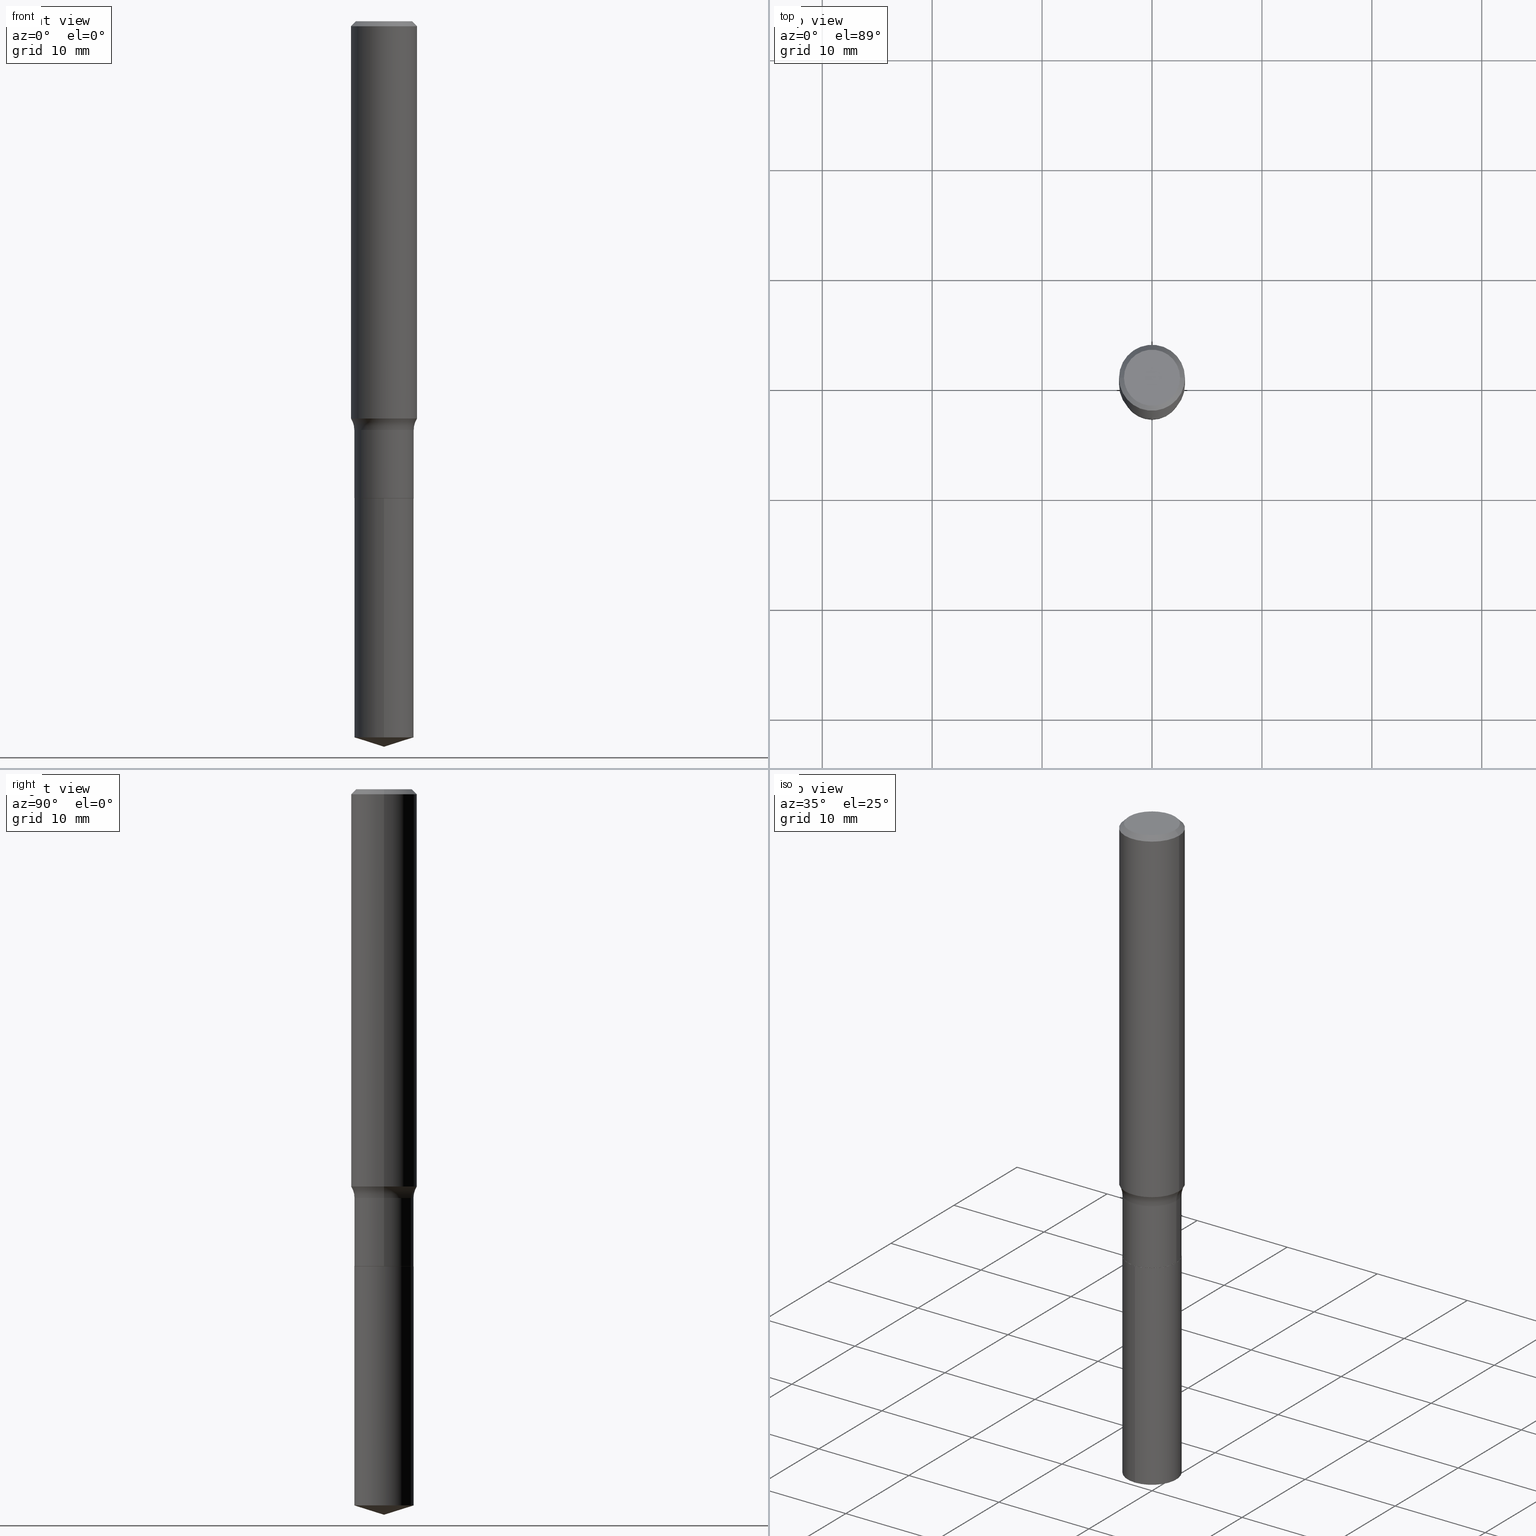
[diagram: canonical four-view strip — front | top / right | iso, engineering-drawing reading convention]
A machine part, canonical four-view strip (front | top / right | iso — engineering-drawing reading convention). The complete STEP part file that produces these views, byte-faithful:
ISO-10303-21;
HEADER;
FILE_DESCRIPTION (( 'STEP AP203' ),
    '1' );
FILE_NAME ('63750.STEP',
    '2024-04-19T15:07:24',
    ( '' ),
    ( '' ),
    'SwSTEP 2.0',
    'SolidWorks 2023',
    '' );
FILE_SCHEMA (( 'CONFIG_CONTROL_DESIGN' ));
ENDSEC;

DATA;
#1 = ORIENTED_EDGE ( 'NONE', *, *, #270, .F. ) ;
#2 = DIRECTION ( 'NONE',  ( -6.982962677686265133E-15, -1.000000000000000000, 3.500519750498657495E-15 ) ) ;
#3 = ORIENTED_EDGE ( 'NONE', *, *, #384, .T. ) ;
#4 = FACE_OUTER_BOUND ( 'NONE', #464, .T. ) ;
#5 = TOROIDAL_SURFACE ( 'NONE', #123, 0.1842999999999999639, 0.07799999999999999989 ) ;
#6 = ORIENTED_EDGE ( 'NONE', *, *, #27, .T. ) ;
#7 = AXIS2_PLACEMENT_3D ( 'NONE', #458, #115, #235 ) ;
#8 = PLANE ( 'NONE',  #158 ) ;
#9 = VERTEX_POINT ( 'NONE', #98 ) ;
#10 = CARTESIAN_POINT ( 'NONE',  ( 4.178328002247923804E-29, -5.965545015547398653E-15, -1.708599999999999897 ) ) ;
#11 = VERTEX_POINT ( 'NONE', #94 ) ;
#12 = ORIENTED_EDGE ( 'NONE', *, *, #418, .T. ) ;
#13 = CC_DESIGN_PERSON_AND_ORGANIZATION_ASSIGNMENT ( #447, #294, ( #60 ) ) ;
#14 = AXIS2_PLACEMENT_3D ( 'NONE', #85, #42, #237 ) ;
#15 = ORIENTED_EDGE ( 'NONE', *, *, #49, .T. ) ;
#16 = DESIGN_CONTEXT ( 'detailed design', #337, 'design' ) ;
#17 = DIRECTION ( 'NONE',  ( 1.000000000000000000, -6.982962677686269077E-15, 0.000000000000000000 ) ) ;
#18 = DIRECTION ( 'NONE',  ( -1.000000000000000000, 7.105427357600997914E-15, 0.000000000000000000 ) ) ;
#19 =( CONVERSION_BASED_UNIT ( 'INCH', #128 ) LENGTH_UNIT ( ) NAMED_UNIT ( #322 ) );
#20 = CC_DESIGN_PERSON_AND_ORGANIZATION_ASSIGNMENT ( #69, #411, ( #124 ) ) ;
#21 = ORIENTED_EDGE ( 'NONE', *, *, #211, .F. ) ;
#22 = AXIS2_PLACEMENT_3D ( 'NONE', #291, #368, #363 ) ;
#23 = CC_DESIGN_APPROVAL ( #180, ( #463 ) ) ;
#24 = CARTESIAN_POINT ( 'NONE',  ( -0.1842999999999999639, -3.802347566194384707E-15, -1.464099999999999735 ) ) ;
#25 = DIRECTION ( 'NONE',  ( 1.000000000000000000, -6.982962677686266711E-15, 4.876140833081945105E-29 ) ) ;
#26 = DIRECTION ( 'NONE',  ( 0.7071067811866199593, -2.468850131083015945E-15, 0.7071067811864750752 ) ) ;
#27 = EDGE_CURVE ( 'NONE', #479, #310, #397, .T. ) ;
#28 = VECTOR ( 'NONE', #51, 39.37007874015748143 ) ;
#29 = AXIS2_PLACEMENT_3D ( 'NONE', #357, #402, #57 ) ;
#30 = DIRECTION ( 'NONE',  ( -2.445468806185136597E-29, 3.491481338843145583E-15, 1.000000000000000000 ) ) ;
#31 = DATE_AND_TIME ( #61, #201 ) ;
#32 = DIRECTION ( 'NONE',  ( -2.445468806185136597E-29, 3.491481338843145583E-15, 1.000000000000000000 ) ) ;
#33 = CC_DESIGN_PERSON_AND_ORGANIZATION_ASSIGNMENT ( #338, #373, ( #60 ) ) ;
#34 = CARTESIAN_POINT ( 'NONE',  ( 7.553069281130493504E-16, 0.1062999999999910683, -2.564883738742165242 ) ) ;
#35 = CARTESIAN_POINT ( 'NONE',  ( 4.178328002247923804E-29, -5.965545015547398653E-15, -1.708599999999999897 ) ) ;
#36 = CC_DESIGN_SECURITY_CLASSIFICATION ( #124, ( #60 ) ) ;
#37 = ORIENTED_EDGE ( 'NONE', *, *, #491, .T. ) ;
#38 = FACE_OUTER_BOUND ( 'NONE', #316, .T. ) ;
#39 = ORIENTED_EDGE ( 'NONE', *, *, #217, .F. ) ;
#40 = CARTESIAN_POINT ( 'NONE',  ( 4.178328002247923804E-29, -5.965545015547398653E-15, -1.708599999999999897 ) ) ;
#41 = ORIENTED_EDGE ( 'NONE', *, *, #297, .T. ) ;
#42 = DIRECTION ( 'NONE',  ( 2.445468806185136597E-29, -3.491481338843145583E-15, -1.000000000000000000 ) ) ;
#43 = CONICAL_SURFACE ( 'NONE', #109, 0.1058000000000000052, 0.7853981633975507526 ) ;
#44 = EDGE_LOOP ( 'NONE', ( #315, #1 ) ) ;
#45 = FACE_OUTER_BOUND ( 'NONE', #478, .T. ) ;
#46 = EDGE_CURVE ( 'NONE', #383, #310, #413, .T. ) ;
#47 = ORIENTED_EDGE ( 'NONE', *, *, #129, .F. ) ;
#48 = DIRECTION ( 'NONE',  ( -2.445468806185136597E-29, 3.491481338843145583E-15, 1.000000000000000000 ) ) ;
#49 = EDGE_CURVE ( 'NONE', #11, #437, #108, .T. ) ;
#50 = DIRECTION ( 'NONE',  ( 1.000000000000000000, -6.982962677686266711E-15, 0.000000000000000000 ) ) ;
#51 = DIRECTION ( 'NONE',  ( 0.7071067811865454633, -7.319954787623248157E-15, -0.7071067811865495711 ) ) ;
#52 = CIRCLE ( 'NONE', #421, 0.1181000000000001632 ) ;
#53 = APPLICATION_PROTOCOL_DEFINITION ( 'international standard', 'config_control_design', 1994, #253 ) ;
#54 = DIRECTION ( 'NONE',  ( -6.982962677686265922E-15, -1.000000000000000000, 2.569941668545873170E-15 ) ) ;
#55 = EDGE_CURVE ( 'NONE', #113, #479, #327, .T. ) ;
#56 = ORIENTED_EDGE ( 'NONE', *, *, #49, .F. ) ;
#57 = DIRECTION ( 'NONE',  ( 1.000000000000000000, -6.982962677686265922E-15, 4.876176775795935793E-29 ) ) ;
#58 = ORIENTED_EDGE ( 'NONE', *, *, #297, .F. ) ;
#59 = CIRCLE ( 'NONE', #190, 0.1063000000000000056 ) ;
#60 = PRODUCT_DEFINITION_FORMATION_WITH_SPECIFIED_SOURCE ( 'ANY', '', #473, .NOT_KNOWN. ) ;
#61 = CALENDAR_DATE ( 2024, 19, 4 ) ;
#62 = CARTESIAN_POINT ( 'NONE',  ( 3.580410879135657668E-29, -5.111877828200249487E-15, -1.464099999999999735 ) ) ;
#63 = LINE ( 'NONE', #372, #468 ) ;
#64 = EDGE_CURVE ( 'NONE', #155, #117, #399, .T. ) ;
#65 = CALENDAR_DATE ( 2024, 19, 4 ) ;
#66 = DIRECTION ( 'NONE',  ( -2.445655666621594660E-29, 3.491213744062702196E-15, 1.000000000000000000 ) ) ;
#67 = ADVANCED_FACE ( 'NONE', ( #248 ), #459, .T. ) ;
#68 = AXIS2_PLACEMENT_3D ( 'NONE', #369, #302, #331 ) ;
#69 = PERSON_AND_ORGANIZATION ( #405, #239 ) ;
#70 = AXIS2_PLACEMENT_3D ( 'NONE', #272, #312, #462 ) ;
#71 = DIRECTION ( 'NONE',  ( -2.445468806185136597E-29, 3.491481338843145583E-15, 1.000000000000000000 ) ) ;
#72 = UNCERTAINTY_MEASURE_WITH_UNIT (LENGTH_MEASURE( 1.000000000000000082E-05 ), #19, 'distance_accuracy_value', 'NONE');
#73 = CARTESIAN_POINT ( 'NONE',  ( 4.178328002247923804E-29, -5.965545015547398653E-15, -1.708599999999999897 ) ) ;
#74 = DIRECTION ( 'NONE',  ( 1.000000000000000000, -6.982962677686266711E-15, 4.876140833081945105E-29 ) ) ;
#75 = ORIENTED_EDGE ( 'NONE', *, *, #229, .F. ) ;
#76 = AXIS2_PLACEMENT_3D ( 'NONE', #393, #456, #74 ) ;
#77 = CARTESIAN_POINT ( 'NONE',  ( 3.479535364985662508E-29, -4.967854328775472184E-15, -1.422850030303040914 ) ) ;
#78 = LOCAL_TIME ( 11, 7, 24.00000000000000000, #484 ) ;
#79 = ORIENTED_EDGE ( 'NONE', *, *, #82, .T. ) ;
#80 = DIRECTION ( 'NONE',  ( -2.445468806185136877E-29, 3.491481338843145188E-15, 1.000000000000000000 ) ) ;
#81 = ORIENTED_EDGE ( 'NONE', *, *, #332, .F. ) ;
#82 = EDGE_CURVE ( 'NONE', #383, #437, #179, .T. ) ;
#83 = CARTESIAN_POINT ( 'NONE',  ( 4.178328002247923804E-29, -5.965545015547398653E-15, -1.708599999999999897 ) ) ;
#84 = EDGE_LOOP ( 'NONE', ( #420, #406 ) ) ;
#85 = CARTESIAN_POINT ( 'NONE',  ( 4.332147990156996744E-31, -6.185159191760670395E-17, -0.01771500000000010913 ) ) ;
#86 = VECTOR ( 'NONE', #169, 39.37007874015748143 ) ;
#87 = CIRCLE ( 'NONE', #135, 0.1062999999999999640 ) ;
#88 = ORIENTED_EDGE ( 'NONE', *, *, #448, .F. ) ;
#89 = EDGE_CURVE ( 'NONE', #324, #11, #139, .T. ) ;
#90 = EDGE_LOOP ( 'NONE', ( #365, #244, #198, #252 ) ) ;
#91 = MECHANICAL_CONTEXT ( 'NONE', #253, 'mechanical' ) ;
#92 = ORIENTED_EDGE ( 'NONE', *, *, #376, .F. ) ;
#93 = LINE ( 'NONE', #173, #367 ) ;
#94 = CARTESIAN_POINT ( 'NONE',  ( 0.1180999999999999966, -8.865394841523547570E-16, -0.01771500000000010913 ) ) ;
#95 = ADVANCED_FACE ( 'NONE', ( #321 ), #130, .T. ) ;
#96 = CLOSED_SHELL ( 'NONE', ( #227, #67, #304, #95, #370 ) ) ;
#97 = PERSON_AND_ORGANIZATION_ROLE ( 'creator' ) ;
#98 = CARTESIAN_POINT ( 'NONE',  ( 0.1058000000000000052, -6.704342466846604996E-15, -1.708599999999999897 ) ) ;
#99 = ORIENTED_EDGE ( 'NONE', *, *, #442, .F. ) ;
#100 = DIRECTION ( 'NONE',  ( -6.982962677686265922E-15, -1.000000000000000000, 2.569941668545873170E-15 ) ) ;
#101 = AXIS2_PLACEMENT_3D ( 'NONE', #228, #481, #446 ) ;
#102 = AXIS2_PLACEMENT_3D ( 'NONE', #83, #48, #395 ) ;
#103 = EDGE_CURVE ( 'NONE', #117, #137, #213, .T. ) ;
#104 = CARTESIAN_POINT ( 'NONE',  ( 6.272503180138623620E-29, -8.955014573061440103E-15, -2.564883738742164798 ) ) ;
#105 = COORDINATED_UNIVERSAL_TIME_OFFSET ( 5, 0, .BEHIND. ) ;
#106 = CARTESIAN_POINT ( 'NONE',  ( -7.422889326379875229E-16, -0.1063000000000089845, -2.564883738742163910 ) ) ;
#107 = DIRECTION ( 'NONE',  ( -2.445468806185136597E-29, 3.491481338843145583E-15, 1.000000000000000000 ) ) ;
#108 = CIRCLE ( 'NONE', #341, 0.1180999999999999966 ) ;
#109 = AXIS2_PLACEMENT_3D ( 'NONE', #10, #364, #318 ) ;
#110 = FACE_OUTER_BOUND ( 'NONE', #241, .T. ) ;
#111 = CARTESIAN_POINT ( 'NONE',  ( 0.1003850000000000020, -7.803837484803598359E-16, -4.101342130339306751E-18 ) ) ;
#112 = LINE ( 'NONE', #345, #439 ) ;
#113 = VERTEX_POINT ( 'NONE', #445 ) ;
#114 = EDGE_CURVE ( 'NONE', #437, #11, #366, .T. ) ;
#115 = DIRECTION ( 'NONE',  ( -2.445468806185136597E-29, 3.491481338843145583E-15, 1.000000000000000000 ) ) ;
#116 = TOROIDAL_SURFACE ( 'NONE', #375, 0.1842999999999999639, 0.07799999999999999989 ) ;
#117 = VERTEX_POINT ( 'NONE', #34 ) ;
#118 = LINE ( 'NONE', #202, #351 ) ;
#119 = ORIENTED_EDGE ( 'NONE', *, *, #488, .T. ) ;
#120 = EDGE_LOOP ( 'NONE', ( #344, #58, #172, #267 ) ) ;
#121 = CC_DESIGN_PERSON_AND_ORGANIZATION_ASSIGNMENT ( #207, #360, ( #473 ) ) ;
#122 = FACE_OUTER_BOUND ( 'NONE', #44, .T. ) ;
#123 = AXIS2_PLACEMENT_3D ( 'NONE', #62, #30, #336 ) ;
#124 = SECURITY_CLASSIFICATION ( '', '', #138 ) ;
#125 = VERTEX_POINT ( 'NONE', #293 ) ;
#126 = CARTESIAN_POINT ( 'NONE',  ( 0.000000000000000000, 0.000000000000000000, 0.000000000000000000 ) ) ;
#127 = DIRECTION ( 'NONE',  ( -2.445655666621594660E-29, 3.491213744062702196E-15, 1.000000000000000000 ) ) ;
#128 = LENGTH_MEASURE_WITH_UNIT ( LENGTH_MEASURE( 0.02539999999999999897 ), #245 );
#129 = EDGE_CURVE ( 'NONE', #231, #167, #176, .T. ) ;
#130 = CYLINDRICAL_SURFACE ( 'NONE', #303, 0.1063000000000000056 ) ;
#131 = CARTESIAN_POINT ( 'NONE',  ( 3.580410879135657668E-29, -5.111877828200249487E-15, -1.464099999999999735 ) ) ;
#132 = CARTESIAN_POINT ( 'NONE',  ( -8.993118375179670679E-28, 1.283773329974541866E-13, 36.77167874015748339 ) ) ;
#133 = AXIS2_PLACEMENT_3D ( 'NONE', #299, #32, #261 ) ;
#134 = APPROVAL_PERSON_ORGANIZATION ( #249, #180, #472 ) ;
#135 = AXIS2_PLACEMENT_3D ( 'NONE', #131, #281, #290 ) ;
#136 = CARTESIAN_POINT ( 'NONE',  ( -0.1063000000000000056, -4.782531623426126781E-15, -1.708099999999999952 ) ) ;
#137 = VERTEX_POINT ( 'NONE', #226 ) ;
#138 = SECURITY_CLASSIFICATION_LEVEL ( 'unclassified' ) ;
#139 = LINE ( 'NONE', #434, #28 ) ;
#140 = EDGE_CURVE ( 'NONE', #324, #275, #452, .T. ) ;
#141 = CARTESIAN_POINT ( 'NONE',  ( 0.1181000000000001632, -5.792542221010220447E-15, -1.422850030303040914 ) ) ;
#142 = CIRCLE ( 'NONE', #429, 0.1062999999999999640 ) ;
#143 = APPROVAL_ROLE ( '' ) ;
#144 = DIRECTION ( 'NONE',  ( 1.000000000000000000, -6.982962677686266711E-15, 0.000000000000000000 ) ) ;
#145 = APPROVAL_DATE_TIME ( #292, #200 ) ;
#146 = DIRECTION ( 'NONE',  ( 1.000000000000000000, -6.982962677686270655E-15, 0.000000000000000000 ) ) ;
#147 = DATE_TIME_ROLE ( 'classification_date' ) ;
#148 = CARTESIAN_POINT ( 'NONE',  ( 0.1842999999999999639, -6.398837849697827672E-15, -1.464099999999999735 ) ) ;
#149 = VECTOR ( 'NONE', #422, 39.37007874015748143 ) ;
#150 = DIRECTION ( 'NONE',  ( 1.000000000000000000, -6.982962677686263555E-15, 0.000000000000000000 ) ) ;
#151 = DIRECTION ( 'NONE',  ( 6.982962677686265922E-15, 1.000000000000000000, -3.491213744062702196E-15 ) ) ;
#152 = VERTEX_POINT ( 'NONE', #264 ) ;
#153 = ADVANCED_FACE ( 'NONE', ( #333 ), #5, .F. ) ;
#154 = FACE_OUTER_BOUND ( 'NONE', #319, .T. ) ;
#155 = VERTEX_POINT ( 'NONE', #106 ) ;
#156 = CLOSED_SHELL ( 'NONE', ( #436, #347, #184, #311, #392, #289, #153, #159, #300, #174, #471, #455 ) ) ;
#157 = CARTESIAN_POINT ( 'NONE',  ( -0.1181000000000001632, -4.128703357842792410E-15, -1.422850030303040914 ) ) ;
#158 = AXIS2_PLACEMENT_3D ( 'NONE', #35, #343, #151 ) ;
#159 = ADVANCED_FACE ( 'NONE', ( #414 ), #221, .T. ) ;
#160 = ORIENTED_EDGE ( 'NONE', *, *, #418, .F. ) ;
#161 = MANIFOLD_SOLID_BREP ( 'Body-Move/Copy2[2]', #156 ) ;
#162 = CYLINDRICAL_SURFACE ( 'NONE', #477, 0.1062999999999999917 ) ;
#163 = ORIENTED_EDGE ( 'NONE', *, *, #353, .T. ) ;
#164 = ORIENTED_EDGE ( 'NONE', *, *, #442, .T. ) ;
#165 = AXIS2_PLACEMENT_3D ( 'NONE', #183, #274, #417 ) ;
#166 = AXIS2_PLACEMENT_3D ( 'NONE', #431, #404, #17 ) ;
#167 = VERTEX_POINT ( 'NONE', #374 ) ;
#168 = APPLICATION_PROTOCOL_DEFINITION ( 'international standard', 'config_control_design', 1994, #337 ) ;
#169 = DIRECTION ( 'NONE',  ( -2.445468806185136877E-29, 3.491481338843145188E-15, 1.000000000000000000 ) ) ;
#170 = APPROVAL ( #482, 'UNSPECIFIED' ) ;
#171 = APPROVAL_DATE_TIME ( #362, #180 ) ;
#172 = ORIENTED_EDGE ( 'NONE', *, *, #129, .T. ) ;
#173 = CARTESIAN_POINT ( 'NONE',  ( 6.354153144666085893E-29, -9.072484217456256761E-15, -2.598399999999999821 ) ) ;
#174 = ADVANCED_FACE ( 'NONE', ( #378 ), #223, .F. ) ;
#175 = CARTESIAN_POINT ( 'NONE',  ( -0.1062999999999999917, 7.553069281129864387E-16, -5.228828000940964357E-30 ) ) ;
#176 = CIRCLE ( 'NONE', #268, 0.07799999999999999989 ) ;
#177 = AXIS2_PLACEMENT_3D ( 'NONE', #197, #314, #2 ) ;
#178 = APPROVAL_ROLE ( '' ) ;
#179 = LINE ( 'NONE', #288, #86 ) ;
#180 = APPROVAL ( #320, 'UNSPECIFIED' ) ;
#181 = APPROVAL_STATUS ( 'not_yet_approved' ) ;
#182 = DIRECTION ( 'NONE',  ( -2.445468806185136597E-29, 3.491481338843145583E-15, 1.000000000000000000 ) ) ;
#183 = CARTESIAN_POINT ( 'NONE',  ( 4.178328002247923804E-29, -5.965545015547398653E-15, -1.708599999999999897 ) ) ;
#184 = ADVANCED_FACE ( 'NONE', ( #483 ), #186, .T. ) ;
#185 = DATE_TIME_ROLE ( 'creation_date' ) ;
#186 = CYLINDRICAL_SURFACE ( 'NONE', #285, 0.1181000000000000799 ) ;
#187 = PERSON_AND_ORGANIZATION ( #405, #239 ) ;
#188 = LINE ( 'NONE', #189, #219 ) ;
#189 = CARTESIAN_POINT ( 'NONE',  ( -0.1180999999999999966, 7.628363003171413738E-16, -0.01771500000000010913 ) ) ;
#190 = AXIS2_PLACEMENT_3D ( 'NONE', #104, #66, #256 ) ;
#191 = LOCAL_TIME ( 11, 7, 24.00000000000000000, #260 ) ;
#192 = FACE_OUTER_BOUND ( 'NONE', #250, .T. ) ;
#193 = ORIENTED_EDGE ( 'NONE', *, *, #64, .F. ) ;
#194 = EDGE_CURVE ( 'NONE', #9, #113, #349, .T. ) ;
#195 = CYLINDRICAL_SURFACE ( 'NONE', #7, 0.1062999999999999917 ) ;
#196 = ORIENTED_EDGE ( 'NONE', *, *, #243, .T. ) ;
#197 = CARTESIAN_POINT ( 'NONE',  ( -8.993118375179670679E-28, 1.283773329974541866E-13, 36.77167874015748339 ) ) ;
#198 = ORIENTED_EDGE ( 'NONE', *, *, #217, .T. ) ;
#199 = AXIS2_PLACEMENT_3D ( 'NONE', #132, #127, #358 ) ;
#200 = APPROVAL ( #181, 'UNSPECIFIED' ) ;
#201 = LOCAL_TIME ( 11, 7, 24.00000000000000000, #105 ) ;
#202 = CARTESIAN_POINT ( 'NONE',  ( 0.1062999999999999917, -7.422889326380501387E-16, 5.183375912671078649E-30 ) ) ;
#203 = VERTEX_POINT ( 'NONE', #339 ) ;
#204 = DIRECTION ( 'NONE',  ( -1.000000000000000000, 6.982962677686266711E-15, 0.000000000000000000 ) ) ;
#205 = ORIENTED_EDGE ( 'NONE', *, *, #353, .F. ) ;
#206 = ORIENTED_EDGE ( 'NONE', *, *, #55, .F. ) ;
#207 = PERSON_AND_ORGANIZATION ( #405, #239 ) ;
#208 = AXIS2_PLACEMENT_3D ( 'NONE', #73, #412, #416 ) ;
#209 = CONICAL_SURFACE ( 'NONE', #102, 0.1058000000000000052, 0.7853981633975507526 ) ;
#210 = ORIENTED_EDGE ( 'NONE', *, *, #114, .F. ) ;
#211 = EDGE_CURVE ( 'NONE', #167, #310, #142, .T. ) ;
#212 = CALENDAR_DATE ( 2024, 19, 4 ) ;
#213 = LINE ( 'NONE', #487, #390 ) ;
#214 = FACE_OUTER_BOUND ( 'NONE', #236, .T. ) ;
#215 = EDGE_LOOP ( 'NONE', ( #476, #346, #88, #425 ) ) ;
#216 = DIRECTION ( 'NONE',  ( -6.659769872151639977E-15, -0.9537169507482278208, 0.3007057995042701770 ) ) ;
#217 = EDGE_CURVE ( 'NONE', #275, #437, #188, .T. ) ;
#218 = DIRECTION ( 'NONE',  ( -2.445468806185136597E-29, 3.491481338843145583E-15, 1.000000000000000000 ) ) ;
#219 = VECTOR ( 'NONE', #453, 39.37007874015748143 ) ;
#220 = CIRCLE ( 'NONE', #255, 0.1181000000000001632 ) ;
#221 = CYLINDRICAL_SURFACE ( 'NONE', #68, 0.1181000000000000799 ) ;
#222 = CYLINDRICAL_SURFACE ( 'NONE', #208, 0.1063000000000000056 ) ;
#223 = PLANE ( 'NONE',  #101 ) ;
#224 = AXIS2_PLACEMENT_3D ( 'NONE', #409, #182, #144 ) ;
#225 = CC_DESIGN_DATE_AND_TIME_ASSIGNMENT ( #450, #147, ( #124 ) ) ;
#226 = CARTESIAN_POINT ( 'NONE',  ( 7.553069281130492518E-16, 0.1062999999999940520, -1.708600000000000119 ) ) ;
#227 = ADVANCED_FACE ( 'NONE', ( #110 ), #222, .T. ) ;
#228 = CARTESIAN_POINT ( 'NONE',  ( 5.014852121625167883E-47, -7.159879756154482429E-33, -2.050671065172242981E-18 ) ) ;
#229 = EDGE_CURVE ( 'NONE', #137, #152, #276, .T. ) ;
#230 = DIRECTION ( 'NONE',  ( -2.445468806185136597E-29, 3.491481338843145583E-15, 1.000000000000000000 ) ) ;
#231 = VERTEX_POINT ( 'NONE', #141 ) ;
#232 = CIRCLE ( 'NONE', #76, 0.1003850000000000020 ) ;
#233 = CARTESIAN_POINT ( 'NONE',  ( 3.580410879135657668E-29, -5.111877828200249487E-15, -1.464099999999999735 ) ) ;
#234 = ORIENTED_EDGE ( 'NONE', *, *, #229, .T. ) ;
#235 = DIRECTION ( 'NONE',  ( 1.000000000000000000, -6.982962677686267499E-15, 4.876176775795935232E-29 ) ) ;
#236 = EDGE_LOOP ( 'NONE', ( #206, #389, #313, #160 ) ) ;
#237 = DIRECTION ( 'NONE',  ( -1.000000000000000000, 6.982962677686266711E-15, 0.000000000000000000 ) ) ;
#238 = ORIENTED_EDGE ( 'NONE', *, *, #89, .T. ) ;
#239 = ORGANIZATION ( 'UNSPECIFIED', 'UNSPECIFIED', '' ) ;
#240 = DIRECTION ( 'NONE',  ( -2.445468806185136597E-29, 3.491481338843145583E-15, 1.000000000000000000 ) ) ;
#241 = EDGE_LOOP ( 'NONE', ( #279, #386, #92, #99 ) ) ;
#242 = ORIENTED_EDGE ( 'NONE', *, *, #140, .F. ) ;
#243 = EDGE_CURVE ( 'NONE', #117, #155, #59, .T. ) ;
#244 = ORIENTED_EDGE ( 'NONE', *, *, #280, .F. ) ;
#245 =( LENGTH_UNIT ( ) NAMED_UNIT ( * ) SI_UNIT ( $, .METRE. ) );
#246 = AXIS2_PLACEMENT_3D ( 'NONE', #24, #474, #18 ) ;
#247 = CIRCLE ( 'NONE', #359, 0.1063000000000000056 ) ;
#248 = FACE_OUTER_BOUND ( 'NONE', #394, .T. ) ;
#249 = PERSON_AND_ORGANIZATION ( #405, #239 ) ;
#250 = EDGE_LOOP ( 'NONE', ( #457, #37, #273 ) ) ;
#251 = PLANE ( 'NONE',  #29 ) ;
#252 = ORIENTED_EDGE ( 'NONE', *, *, #114, .T. ) ;
#253 = APPLICATION_CONTEXT ( 'configuration controlled 3d designs of mechanical parts and assemblies' ) ;
#254 = DIRECTION ( 'NONE',  ( -6.982962677686266711E-15, -1.000000000000000000, 3.491481338843145583E-15 ) ) ;
#255 = AXIS2_PLACEMENT_3D ( 'NONE', #77, #427, #269 ) ;
#256 = DIRECTION ( 'NONE',  ( -6.982962677686265922E-15, -1.000000000000000000, 5.139883337091746339E-15 ) ) ;
#257 = DATE_AND_TIME ( #296, #277 ) ;
#258 = DIRECTION ( 'NONE',  ( 1.000000000000000000, -6.982962677686271444E-15, 0.000000000000000000 ) ) ;
#259 = CC_DESIGN_DATE_AND_TIME_ASSIGNMENT ( #31, #185, ( #463 ) ) ;
#260 = COORDINATED_UNIVERSAL_TIME_OFFSET ( 5, 0, .BEHIND. ) ;
#261 = DIRECTION ( 'NONE',  ( 1.000000000000000000, -6.982962677686264344E-15, 0.000000000000000000 ) ) ;
#262 = CIRCLE ( 'NONE', #166, 0.1063000000000000056 ) ;
#263 = EDGE_CURVE ( 'NONE', #9, #125, #63, .T. ) ;
#264 = CARTESIAN_POINT ( 'NONE',  ( -7.422889326380084277E-16, -0.1063000000000059592, -1.708599999999999675 ) ) ;
#265 = DIRECTION ( 'NONE',  ( 1.000000000000000000, -6.982962677686267499E-15, 4.883557194083113462E-29 ) ) ;
#266 = DIRECTION ( 'NONE',  ( -2.445655666621594660E-29, 3.491213744062702196E-15, 1.000000000000000000 ) ) ;
#267 = ORIENTED_EDGE ( 'NONE', *, *, #211, .T. ) ;
#268 = AXIS2_PLACEMENT_3D ( 'NONE', #148, #254, #146 ) ;
#269 = DIRECTION ( 'NONE',  ( 1.000000000000000000, -6.982962677686263555E-15, 0.000000000000000000 ) ) ;
#270 = EDGE_CURVE ( 'NONE', #113, #9, #380, .T. ) ;
#271 = EDGE_LOOP ( 'NONE', ( #205, #432, #119, #47 ) ) ;
#272 = CARTESIAN_POINT ( 'NONE',  ( 4.177105267844832123E-29, -5.963799274877977150E-15, -1.708099999999999952 ) ) ;
#273 = ORIENTED_EDGE ( 'NONE', *, *, #243, .F. ) ;
#274 = DIRECTION ( 'NONE',  ( -2.445468806185136597E-29, 3.491481338843145583E-15, 1.000000000000000000 ) ) ;
#275 = VERTEX_POINT ( 'NONE', #355 ) ;
#276 = CIRCLE ( 'NONE', #407, 0.1063000000000000056 ) ;
#277 = LOCAL_TIME ( 11, 7, 24.00000000000000000, #371 ) ;
#278 =( NAMED_UNIT ( * ) SI_UNIT ( $, .STERADIAN. ) SOLID_ANGLE_UNIT ( ) );
#279 = ORIENTED_EDGE ( 'NONE', *, *, #64, .T. ) ;
#280 = EDGE_CURVE ( 'NONE', #275, #324, #232, .T. ) ;
#281 = DIRECTION ( 'NONE',  ( -2.445468806185136597E-29, 3.491481338843145583E-15, 1.000000000000000000 ) ) ;
#282 = ORIENTED_EDGE ( 'NONE', *, *, #376, .T. ) ;
#283 = PRODUCT_DEFINITION_SHAPE ( 'NONE', 'NONE',  #463 ) ;
#284 = CARTESIAN_POINT ( 'NONE',  ( 4.178328002247923804E-29, -5.965545015547398653E-15, -1.708599999999999897 ) ) ;
#285 = AXIS2_PLACEMENT_3D ( 'NONE', #377, #107, #486 ) ;
#286 = DIRECTION ( 'NONE',  ( 1.000000000000000000, 0.000000000000000000, 0.000000000000000000 ) ) ;
#287 = CONICAL_SURFACE ( 'NONE', #461, 0.1180999999999999966, 0.7853981633974453924 ) ;
#288 = CARTESIAN_POINT ( 'NONE',  ( -0.1181000000000000799, 8.391509709326788873E-16, -5.809262341591047988E-30 ) ) ;
#289 = ADVANCED_FACE ( 'NONE', ( #154 ), #162, .T. ) ;
#290 = DIRECTION ( 'NONE',  ( 1.000000000000000000, -6.982962677686271444E-15, 0.000000000000000000 ) ) ;
#291 = CARTESIAN_POINT ( 'NONE',  ( 6.272503180138623620E-29, -8.955014573061440103E-15, -2.564883738742164798 ) ) ;
#292 = DATE_AND_TIME ( #65, #191 ) ;
#293 = CARTESIAN_POINT ( 'NONE',  ( 0.1063000000000000056, -6.706088207516027289E-15, -1.708099999999999952 ) ) ;
#294 = PERSON_AND_ORGANIZATION_ROLE ( 'design_supplier' ) ;
#295 = CC_DESIGN_APPROVAL ( #170, ( #60 ) ) ;
#296 = CALENDAR_DATE ( 2024, 19, 4 ) ;
#297 = EDGE_CURVE ( 'NONE', #231, #383, #220, .T. ) ;
#298 = CARTESIAN_POINT ( 'NONE',  ( 1.002970424325033577E-46, -1.431975951230896486E-32, -4.101342130344485961E-18 ) ) ;
#299 = CARTESIAN_POINT ( 'NONE',  ( 4.178328002247923804E-29, -5.965545015547398653E-15, -1.708599999999999897 ) ) ;
#300 = ADVANCED_FACE ( 'NONE', ( #379 ), #342, .T. ) ;
#301 = PERSON_AND_ORGANIZATION ( #405, #239 ) ;
#302 = DIRECTION ( 'NONE',  ( -2.445468806185136597E-29, 3.491481338843145583E-15, 1.000000000000000000 ) ) ;
#303 = AXIS2_PLACEMENT_3D ( 'NONE', #284, #401, #54 ) ;
#304 = ADVANCED_FACE ( 'NONE', ( #192 ), #391, .T. ) ;
#305 = CIRCLE ( 'NONE', #70, 0.1063000000000000056 ) ;
#306 = DIRECTION ( 'NONE',  ( 1.000000000000000000, -6.982962677686267499E-15, 4.876176775795935232E-29 ) ) ;
#307 = DIRECTION ( 'NONE',  ( -6.982962677686265922E-15, -1.000000000000000000, 2.569941668545873170E-15 ) ) ;
#308 = EDGE_LOOP ( 'NONE', ( #361, #163, #467, #210 ) ) ;
#309 = CARTESIAN_POINT ( 'NONE',  ( 0.1181000000000000799, -8.246878922347486570E-16, 5.758764772215004644E-30 ) ) ;
#310 = VERTEX_POINT ( 'NONE', #465 ) ;
#311 = ADVANCED_FACE ( 'NONE', ( #454 ), #116, .F. ) ;
#312 = DIRECTION ( 'NONE',  ( -2.445468806185136597E-29, 3.491481338843145583E-15, 1.000000000000000000 ) ) ;
#313 = ORIENTED_EDGE ( 'NONE', *, *, #263, .T. ) ;
#314 = DIRECTION ( 'NONE',  ( -2.445655666621594660E-29, 3.491213744062702196E-15, 1.000000000000000000 ) ) ;
#315 = ORIENTED_EDGE ( 'NONE', *, *, #194, .F. ) ;
#316 = EDGE_LOOP ( 'NONE', ( #428, #6, #21, #81 ) ) ;
#317 = VECTOR ( 'NONE', #444, 39.37007874015748143 ) ;
#318 = DIRECTION ( 'NONE',  ( 1.000000000000000000, -6.982962677686264344E-15, 0.000000000000000000 ) ) ;
#319 = EDGE_LOOP ( 'NONE', ( #466, #12, #356, #460 ) ) ;
#320 = APPROVAL_STATUS ( 'not_yet_approved' ) ;
#321 = FACE_OUTER_BOUND ( 'NONE', #329, .T. ) ;
#322 = DIMENSIONAL_EXPONENTS ( 1.000000000000000000, 0.000000000000000000, 0.000000000000000000, 0.000000000000000000, 0.000000000000000000, 0.000000000000000000, 0.000000000000000000 ) ;
#323 = DIRECTION ( 'NONE',  ( -2.445655666621594941E-29, 3.491213744062702196E-15, 1.000000000000000000 ) ) ;
#324 = VERTEX_POINT ( 'NONE', #111 ) ;
#325 = CARTESIAN_POINT ( 'NONE',  ( -0.1180999999999999966, -1.675701989413859614E-15, -0.01771500000000010913 ) ) ;
#326 = VECTOR ( 'NONE', #323, 39.37007874015748143 ) ;
#327 = LINE ( 'NONE', #403, #317 ) ;
#328 = MANIFOLD_SOLID_BREP ( 'Body-Move/Copy2[1]', #96 ) ;
#329 = EDGE_LOOP ( 'NONE', ( #423, #196, #164, #75 ) ) ;
#330 = CALENDAR_DATE ( 2024, 19, 4 ) ;
#331 = DIRECTION ( 'NONE',  ( 1.000000000000000000, -6.982962677686266711E-15, 4.876176775795936353E-29 ) ) ;
#332 = EDGE_CURVE ( 'NONE', #125, #167, #118, .T. ) ;
#333 = FACE_OUTER_BOUND ( 'NONE', #120, .T. ) ;
#334 = AXIS2_PLACEMENT_3D ( 'NONE', #298, #410, #25 ) ;
#335 = APPROVAL_DATE_TIME ( #257, #170 ) ;
#336 = DIRECTION ( 'NONE',  ( 1.000000000000000000, -6.982962677686267499E-15, 4.883557194083113462E-29 ) ) ;
#337 = APPLICATION_CONTEXT ( 'configuration controlled 3d designs of mechanical parts and assemblies' ) ;
#338 = PERSON_AND_ORGANIZATION ( #405, #239 ) ;
#339 = CARTESIAN_POINT ( 'NONE',  ( 6.354791684149550699E-29, -9.071569792572525154E-15, -2.598399999999999821 ) ) ;
#340 = CARTESIAN_POINT ( 'NONE',  ( 4.178328002247923804E-29, -5.965545015547398653E-15, -1.708599999999999897 ) ) ;
#341 = AXIS2_PLACEMENT_3D ( 'NONE', #396, #218, #50 ) ;
#342 = CONICAL_SURFACE ( 'NONE', #14, 0.1180999999999999966, 0.7853981633974453924 ) ;
#343 = DIRECTION ( 'NONE',  ( 2.445655666621594380E-29, -3.491213744062702196E-15, -1.000000000000000000 ) ) ;
#344 = ORIENTED_EDGE ( 'NONE', *, *, #46, .F. ) ;
#345 = CARTESIAN_POINT ( 'NONE',  ( 6.354797283387084619E-29, -9.071569792572525154E-15, -2.598399999999999821 ) ) ;
#346 = ORIENTED_EDGE ( 'NONE', *, *, #55, .T. ) ;
#347 = ADVANCED_FACE ( 'NONE', ( #45 ), #287, .T. ) ;
#348 = CARTESIAN_POINT ( 'NONE',  ( 3.479535364985662508E-29, -4.967854328775472184E-15, -1.422850030303040914 ) ) ;
#349 = CIRCLE ( 'NONE', #133, 0.1058000000000000052 ) ;
#350 =( GEOMETRIC_REPRESENTATION_CONTEXT ( 3 ) GLOBAL_UNCERTAINTY_ASSIGNED_CONTEXT ( ( #72 ) ) GLOBAL_UNIT_ASSIGNED_CONTEXT ( ( #19, #475, #278 ) ) REPRESENTATION_CONTEXT ( 'NONE', 'WORKASPACE' ) );
#351 = VECTOR ( 'NONE', #80, 39.37007874015748143 ) ;
#352 = DIRECTION ( 'NONE',  ( 2.445468806185136597E-29, -3.491481338843145583E-15, -1.000000000000000000 ) ) ;
#353 = EDGE_CURVE ( 'NONE', #383, #231, #52, .T. ) ;
#354 = ORIENTED_EDGE ( 'NONE', *, *, #387, .F. ) ;
#355 = CARTESIAN_POINT ( 'NONE',  ( -0.1003850000000000020, 7.319105043583386689E-16, -4.101342130349496461E-18 ) ) ;
#356 = ORIENTED_EDGE ( 'NONE', *, *, #332, .T. ) ;
#357 = CARTESIAN_POINT ( 'NONE',  ( 4.178328002247923804E-29, -5.965545015547398653E-15, -1.708599999999999897 ) ) ;
#358 = DIRECTION ( 'NONE',  ( -6.982962677686265133E-15, -1.000000000000000000, 3.500519750498657495E-15 ) ) ;
#359 = AXIS2_PLACEMENT_3D ( 'NONE', #40, #266, #307 ) ;
#360 = PERSON_AND_ORGANIZATION_ROLE ( 'design_owner' ) ;
#361 = ORIENTED_EDGE ( 'NONE', *, *, #82, .F. ) ;
#362 = DATE_AND_TIME ( #212, #415 ) ;
#363 = DIRECTION ( 'NONE',  ( -6.982962677686265922E-15, -1.000000000000000000, 5.139883337091746339E-15 ) ) ;
#364 = DIRECTION ( 'NONE',  ( -2.445468806185136597E-29, 3.491481338843145583E-15, 1.000000000000000000 ) ) ;
#365 = ORIENTED_EDGE ( 'NONE', *, *, #89, .F. ) ;
#366 = CIRCLE ( 'NONE', #224, 0.1180999999999999966 ) ;
#367 = VECTOR ( 'NONE', #216, 39.37007874015748854 ) ;
#368 = DIRECTION ( 'NONE',  ( -2.445655666621594660E-29, 3.491213744062702196E-15, 1.000000000000000000 ) ) ;
#369 = CARTESIAN_POINT ( 'NONE',  ( 0.000000000000000000, 0.000000000000000000, 0.000000000000000000 ) ) ;
#370 = ADVANCED_FACE ( 'NONE', ( #4 ), #8, .F. ) ;
#371 = COORDINATED_UNIVERSAL_TIME_OFFSET ( 5, 0, .BEHIND. ) ;
#372 = CARTESIAN_POINT ( 'NONE',  ( 0.1058000000000000052, -6.704342466846604996E-15, -1.708599999999999897 ) ) ;
#373 = PERSON_AND_ORGANIZATION_ROLE ( 'creator' ) ;
#374 = CARTESIAN_POINT ( 'NONE',  ( 0.1062999999999999640, -5.854166760838299626E-15, -1.464099999999999735 ) ) ;
#375 = AXIS2_PLACEMENT_3D ( 'NONE', #233, #240, #265 ) ;
#376 = EDGE_CURVE ( 'NONE', #152, #137, #247, .T. ) ;
#377 = CARTESIAN_POINT ( 'NONE',  ( 0.000000000000000000, 0.000000000000000000, 0.000000000000000000 ) ) ;
#378 = FACE_OUTER_BOUND ( 'NONE', #84, .T. ) ;
#379 = FACE_OUTER_BOUND ( 'NONE', #90, .T. ) ;
#380 = CIRCLE ( 'NONE', #165, 0.1058000000000000052 ) ;
#381 = EDGE_LOOP ( 'NONE', ( #41, #79, #56, #354 ) ) ;
#382 = LINE ( 'NONE', #309, #149 ) ;
#383 = VERTEX_POINT ( 'NONE', #157 ) ;
#384 = EDGE_CURVE ( 'NONE', #203, #117, #112, .T. ) ;
#385 = CARTESIAN_POINT ( 'NONE',  ( 0.000000000000000000, 0.000000000000000000, 0.000000000000000000 ) ) ;
#386 = ORIENTED_EDGE ( 'NONE', *, *, #103, .T. ) ;
#387 = EDGE_CURVE ( 'NONE', #231, #11, #382, .T. ) ;
#388 = DIRECTION ( 'NONE',  ( -2.445468806185136597E-29, 3.491481338843145583E-15, 1.000000000000000000 ) ) ;
#389 = ORIENTED_EDGE ( 'NONE', *, *, #270, .T. ) ;
#390 = VECTOR ( 'NONE', #449, 39.37007874015748143 ) ;
#391 = CONICAL_SURFACE ( 'NONE', #177, 124.8659371009167387, 1.265363707695895457 ) ;
#392 = ADVANCED_FACE ( 'NONE', ( #38 ), #195, .T. ) ;
#393 = CARTESIAN_POINT ( 'NONE',  ( 1.002970424325033577E-46, -1.431975951230896486E-32, -4.101342130344485961E-18 ) ) ;
#394 = EDGE_LOOP ( 'NONE', ( #441, #3, #193 ) ) ;
#395 = DIRECTION ( 'NONE',  ( 1.000000000000000000, -6.982962677686264344E-15, 0.000000000000000000 ) ) ;
#396 = CARTESIAN_POINT ( 'NONE',  ( 4.332147990156996744E-31, -6.185159191760670395E-17, -0.01771500000000010913 ) ) ;
#397 = LINE ( 'NONE', #175, #438 ) ;
#398 = ADVANCED_BREP_SHAPE_REPRESENTATION ( '63750', ( #328, #161, #430 ), #350 ) ;
#399 = CIRCLE ( 'NONE', #22, 0.1063000000000000056 ) ;
#400 = LINE ( 'NONE', #443, #326 ) ;
#401 = DIRECTION ( 'NONE',  ( -2.445655666621594660E-29, 3.491213744062702196E-15, 1.000000000000000000 ) ) ;
#402 = DIRECTION ( 'NONE',  ( -2.438088387897960049E-29, 3.491481338843145188E-15, 1.000000000000000000 ) ) ;
#403 = CARTESIAN_POINT ( 'NONE',  ( -0.1058000000000000052, -5.213790801113212620E-15, -1.708599999999999897 ) ) ;
#404 = DIRECTION ( 'NONE',  ( -2.445468806185136597E-29, 3.491481338843145583E-15, 1.000000000000000000 ) ) ;
#405 = PERSON ( 'UNSPECIFIED', 'UNSPECIFIED', 'UNSPECIFIED', ('UNSPECIFIED'), ('UNSPECIFIED'), ('UNSPECIFIED') ) ;
#406 = ORIENTED_EDGE ( 'NONE', *, *, #140, .T. ) ;
#407 = AXIS2_PLACEMENT_3D ( 'NONE', #340, #489, #100 ) ;
#408 = APPROVAL_PERSON_ORGANIZATION ( #301, #200, #178 ) ;
#409 = CARTESIAN_POINT ( 'NONE',  ( 4.332147990156996744E-31, -6.185159191760670395E-17, -0.01771500000000010913 ) ) ;
#410 = DIRECTION ( 'NONE',  ( -2.445468806185136597E-29, 3.491481338843145583E-15, 1.000000000000000000 ) ) ;
#411 = PERSON_AND_ORGANIZATION_ROLE ( 'classification_officer' ) ;
#412 = DIRECTION ( 'NONE',  ( -2.445655666621594660E-29, 3.491213744062702196E-15, 1.000000000000000000 ) ) ;
#413 = CIRCLE ( 'NONE', #246, 0.07799999999999999989 ) ;
#414 = FACE_OUTER_BOUND ( 'NONE', #308, .T. ) ;
#415 = LOCAL_TIME ( 11, 7, 24.00000000000000000, #435 ) ;
#416 = DIRECTION ( 'NONE',  ( -6.982962677686265922E-15, -1.000000000000000000, 2.569941668545873170E-15 ) ) ;
#417 = DIRECTION ( 'NONE',  ( 1.000000000000000000, -6.982962677686264344E-15, 0.000000000000000000 ) ) ;
#418 = EDGE_CURVE ( 'NONE', #479, #125, #305, .T. ) ;
#419 = DIRECTION ( 'NONE',  ( 6.776566513254263659E-15, 0.9537169507482298192, 0.3007057995042635157 ) ) ;
#420 = ORIENTED_EDGE ( 'NONE', *, *, #280, .T. ) ;
#421 = AXIS2_PLACEMENT_3D ( 'NONE', #348, #388, #150 ) ;
#422 = DIRECTION ( 'NONE',  ( -2.445468806185136877E-29, 3.491481338843145188E-15, 1.000000000000000000 ) ) ;
#423 = ORIENTED_EDGE ( 'NONE', *, *, #103, .F. ) ;
#424 = FACE_OUTER_BOUND ( 'NONE', #215, .T. ) ;
#425 = ORIENTED_EDGE ( 'NONE', *, *, #263, .F. ) ;
#426 = CC_DESIGN_PERSON_AND_ORGANIZATION_ASSIGNMENT ( #440, #97, ( #463 ) ) ;
#427 = DIRECTION ( 'NONE',  ( -2.445468806185136597E-29, 3.491481338843145583E-15, 1.000000000000000000 ) ) ;
#428 = ORIENTED_EDGE ( 'NONE', *, *, #448, .T. ) ;
#429 = AXIS2_PLACEMENT_3D ( 'NONE', #451, #71, #258 ) ;
#430 = AXIS2_PLACEMENT_3D ( 'NONE', #126, #433, #286 ) ;
#431 = CARTESIAN_POINT ( 'NONE',  ( 4.177105267844832123E-29, -5.963799274877977150E-15, -1.708099999999999952 ) ) ;
#432 = ORIENTED_EDGE ( 'NONE', *, *, #46, .T. ) ;
#433 = DIRECTION ( 'NONE',  ( 0.000000000000000000, 0.000000000000000000, 1.000000000000000000 ) ) ;
#434 = CARTESIAN_POINT ( 'NONE',  ( 0.1180999999999999966, -8.720764054544245267E-16, -0.01771500000000010913 ) ) ;
#435 = COORDINATED_UNIVERSAL_TIME_OFFSET ( 5, 0, .BEHIND. ) ;
#436 = ADVANCED_FACE ( 'NONE', ( #424 ), #209, .T. ) ;
#437 = VERTEX_POINT ( 'NONE', #325 ) ;
#438 = VECTOR ( 'NONE', #470, 39.37007874015748143 ) ;
#439 = VECTOR ( 'NONE', #419, 39.37007874015748854 ) ;
#440 = PERSON_AND_ORGANIZATION ( #405, #239 ) ;
#441 = ORIENTED_EDGE ( 'NONE', *, *, #491, .F. ) ;
#442 = EDGE_CURVE ( 'NONE', #155, #152, #400, .T. ) ;
#443 = CARTESIAN_POINT ( 'NONE',  ( -7.422889326380084277E-16, -0.1063000000000059592, -1.708599999999999675 ) ) ;
#444 = DIRECTION ( 'NONE',  ( -0.7071067811866199593, 7.493145998870616062E-15, 0.7071067811864750752 ) ) ;
#445 = CARTESIAN_POINT ( 'NONE',  ( -0.1058000000000000052, -5.211141573939101419E-15, -1.708599999999999897 ) ) ;
#446 = DIRECTION ( 'NONE',  ( -1.000000000000000000, 6.982962677686265922E-15, -4.876176775795935793E-29 ) ) ;
#447 = PERSON_AND_ORGANIZATION ( #405, #239 ) ;
#448 = EDGE_CURVE ( 'NONE', #125, #479, #262, .T. ) ;
#449 = DIRECTION ( 'NONE',  ( -2.445655666621594941E-29, 3.491213744062702196E-15, 1.000000000000000000 ) ) ;
#450 = DATE_AND_TIME ( #330, #78 ) ;
#451 = CARTESIAN_POINT ( 'NONE',  ( 3.580410879135657668E-29, -5.111877828200249487E-15, -1.464099999999999735 ) ) ;
#452 = CIRCLE ( 'NONE', #334, 0.1003850000000000020 ) ;
#453 = DIRECTION ( 'NONE',  ( -0.7071067811865454633, 2.468850131082235367E-15, -0.7071067811865495711 ) ) ;
#454 = FACE_OUTER_BOUND ( 'NONE', #271, .T. ) ;
#455 = ADVANCED_FACE ( 'NONE', ( #214 ), #43, .T. ) ;
#456 = DIRECTION ( 'NONE',  ( -2.445468806185136597E-29, 3.491481338843145583E-15, 1.000000000000000000 ) ) ;
#457 = ORIENTED_EDGE ( 'NONE', *, *, #384, .F. ) ;
#458 = CARTESIAN_POINT ( 'NONE',  ( 0.000000000000000000, 0.000000000000000000, 0.000000000000000000 ) ) ;
#459 = CONICAL_SURFACE ( 'NONE', #199, 124.8659371009167387, 1.265363707695895457 ) ;
#460 = ORIENTED_EDGE ( 'NONE', *, *, #488, .F. ) ;
#461 = AXIS2_PLACEMENT_3D ( 'NONE', #492, #352, #204 ) ;
#462 = DIRECTION ( 'NONE',  ( 1.000000000000000000, -6.982962677686269077E-15, 0.000000000000000000 ) ) ;
#463 = PRODUCT_DEFINITION ( 'UNKNOWN', '', #60, #16 ) ;
#464 = EDGE_LOOP ( 'NONE', ( #282, #234 ) ) ;
#465 = CARTESIAN_POINT ( 'NONE',  ( -0.1062999999999999640, -4.782531623426126781E-15, -1.464099999999999735 ) ) ;
#466 = ORIENTED_EDGE ( 'NONE', *, *, #27, .F. ) ;
#467 = ORIENTED_EDGE ( 'NONE', *, *, #387, .T. ) ;
#468 = VECTOR ( 'NONE', #26, 39.37007874015748143 ) ;
#469 = CC_DESIGN_APPROVAL ( #200, ( #124 ) ) ;
#470 = DIRECTION ( 'NONE',  ( -2.445468806185136877E-29, 3.491481338843145188E-15, 1.000000000000000000 ) ) ;
#471 = ADVANCED_FACE ( 'NONE', ( #122 ), #251, .F. ) ;
#472 = APPROVAL_ROLE ( '' ) ;
#473 = PRODUCT ( '63750', '63750', '', ( #91 ) ) ;
#474 = DIRECTION ( 'NONE',  ( 7.105427357601001859E-15, 1.000000000000000000, -3.491481338843145583E-15 ) ) ;
#475 =( NAMED_UNIT ( * ) PLANE_ANGLE_UNIT ( ) SI_UNIT ( $, .RADIAN. ) );
#476 = ORIENTED_EDGE ( 'NONE', *, *, #194, .T. ) ;
#477 = AXIS2_PLACEMENT_3D ( 'NONE', #385, #230, #306 ) ;
#478 = EDGE_LOOP ( 'NONE', ( #242, #238, #15, #39 ) ) ;
#479 = VERTEX_POINT ( 'NONE', #136 ) ;
#480 = SHAPE_DEFINITION_REPRESENTATION ( #283, #398 ) ;
#481 = DIRECTION ( 'NONE',  ( 2.438088387897960049E-29, -3.491481338843145188E-15, -1.000000000000000000 ) ) ;
#482 = APPROVAL_STATUS ( 'not_yet_approved' ) ;
#483 = FACE_OUTER_BOUND ( 'NONE', #381, .T. ) ;
#484 = COORDINATED_UNIVERSAL_TIME_OFFSET ( 5, 0, .BEHIND. ) ;
#485 = PRODUCT_RELATED_PRODUCT_CATEGORY ( 'detail', '', ( #473 ) ) ;
#486 = DIRECTION ( 'NONE',  ( 1.000000000000000000, -6.982962677686266711E-15, 4.876176775795936353E-29 ) ) ;
#487 = CARTESIAN_POINT ( 'NONE',  ( 7.553069281130281498E-16, 0.1062999999999940520, -1.708600000000000119 ) ) ;
#488 = EDGE_CURVE ( 'NONE', #310, #167, #87, .T. ) ;
#489 = DIRECTION ( 'NONE',  ( -2.445655666621594660E-29, 3.491213744062702196E-15, 1.000000000000000000 ) ) ;
#490 = APPROVAL_PERSON_ORGANIZATION ( #187, #170, #143 ) ;
#491 = EDGE_CURVE ( 'NONE', #203, #155, #93, .T. ) ;
#492 = CARTESIAN_POINT ( 'NONE',  ( 4.332147990156996744E-31, -6.185159191760670395E-17, -0.01771500000000010913 ) ) ;
ENDSEC;
END-ISO-10303-21;
